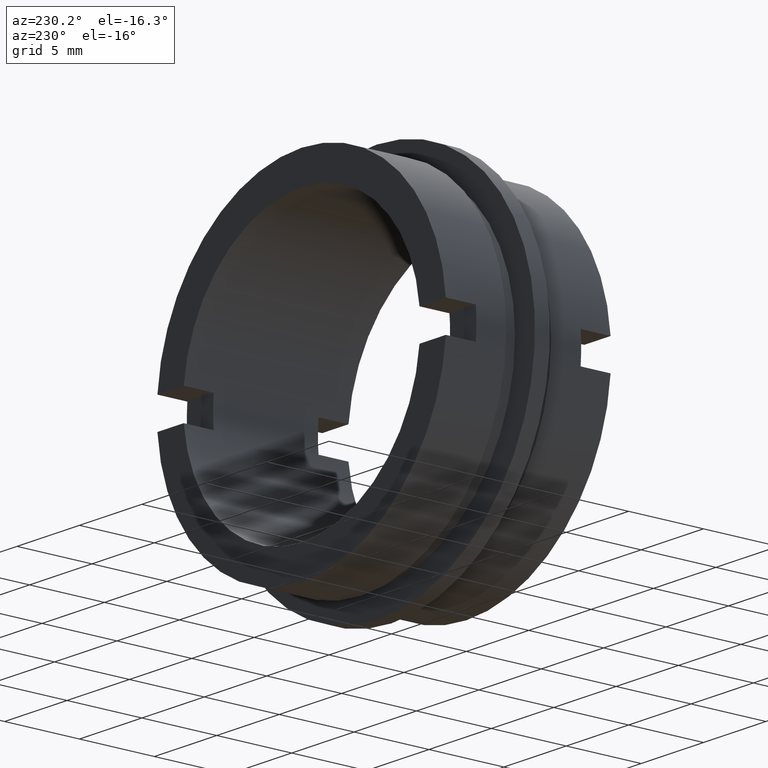
[diagram: clean part render]
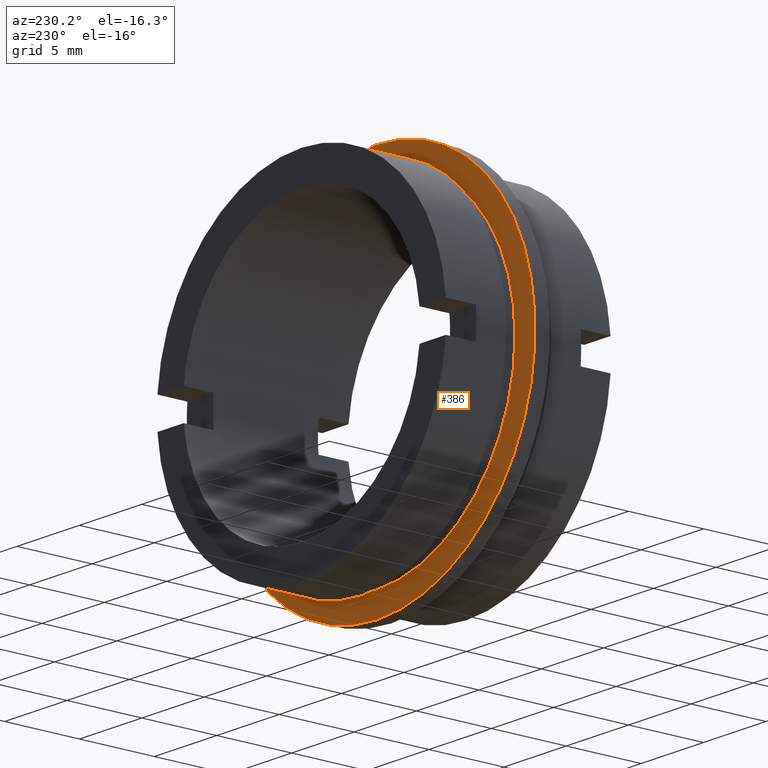
[diagram: same view with one face highlighted and labeled with its STEP entity id]
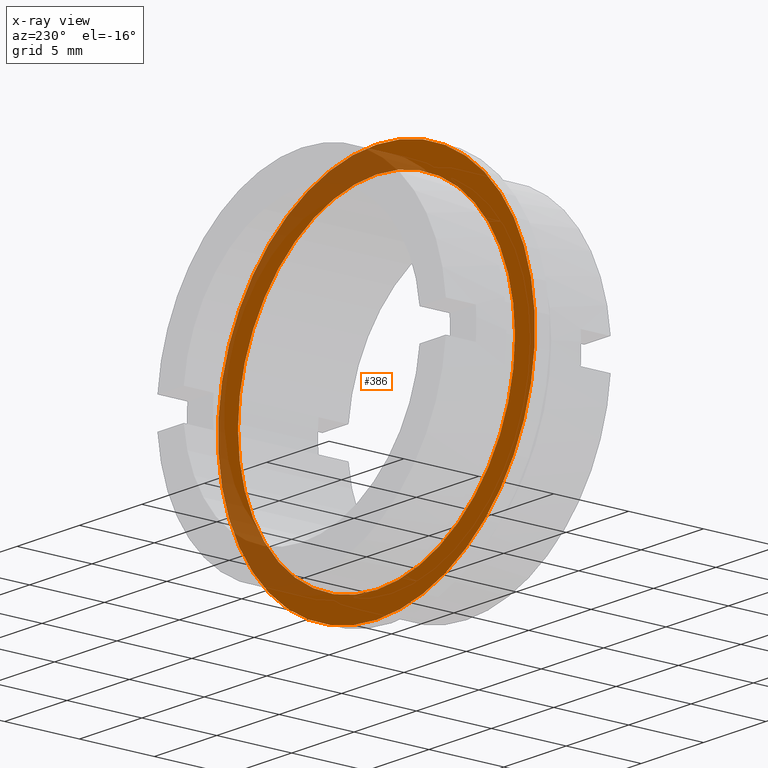
[diagram: x-ray of the same camera — body ghosted, the highlighted face saturated]
A machine part, auxiliary view. The second image highlights one B-rep face of the part: STEP entity #386.
The next image is the same camera in x-ray: the body ghosted, the highlighted face saturated — about 28% of this face is hidden behind the body in this view.
In plain terms, the highlighted planar face has unit normal (-0, 1, 0).
Its self-contained STEP definition (entity closure, byte-faithful):
#37 = CARTESIAN_POINT ( 'NONE',  ( 0.0000000000000000000, 5.999999999999998200, 0.0000000000000000000 ) ) ;
#52 = ORIENTED_EDGE ( 'NONE', *, *, #570, .T. ) ;
#87 = CARTESIAN_POINT ( 'NONE',  ( 0.0000000000000000000, 5.999999999999998200, 11.09999999999999800 ) ) ;
#94 = FACE_BOUND ( 'NONE', #129, .T. ) ;
#95 = VERTEX_POINT ( 'NONE', #87 ) ;
#106 = AXIS2_PLACEMENT_3D ( 'NONE', #212, #756, #124 ) ;
#120 = CARTESIAN_POINT ( 'NONE',  ( -11.09999999999999800, 5.999999999999999100, 0.0000000000000000000 ) ) ;
#124 = DIRECTION ( 'NONE',  ( 0.0000000000000000000, 0.0000000000000000000, 1.000000000000000000 ) ) ;
#129 = EDGE_LOOP ( 'NONE', ( #1022, #543 ) ) ;
#156 = CIRCLE ( 'NONE', #547, 12.69999999999999900 ) ;
#179 = DIRECTION ( 'NONE',  ( -0.0000000000000000000, 1.000000000000000000, -0.0000000000000000000 ) ) ;
#212 = CARTESIAN_POINT ( 'NONE',  ( 0.0000000000000000000, 5.999999999999998200, 0.0000000000000000000 ) ) ;
#226 = CIRCLE ( 'NONE', #106, 11.09999999999999800 ) ;
#237 = CARTESIAN_POINT ( 'NONE',  ( 1.359357947053562000E-015, 5.999999999999998200, -11.09999999999999800 ) ) ;
#325 = EDGE_CURVE ( 'NONE', #827, #95, #226, .T. ) ;
#327 = ORIENTED_EDGE ( 'NONE', *, *, #456, .T. ) ;
#386 = ADVANCED_FACE ( 'NONE', ( #783, #94 ), #568, .T. ) ;
#407 = CARTESIAN_POINT ( 'NONE',  ( 0.0000000000000000000, 5.999999999999998200, 12.69999999999999900 ) ) ;
#456 = EDGE_CURVE ( 'NONE', #1071, #580, #943, .T. ) ;
#466 = DIRECTION ( 'NONE',  ( 0.0000000000000000000, 0.0000000000000000000, 1.000000000000000000 ) ) ;
#470 = DIRECTION ( 'NONE',  ( -0.0000000000000000000, 1.000000000000000000, 0.0000000000000000000 ) ) ;
#530 = EDGE_LOOP ( 'NONE', ( #327, #52 ) ) ;
#543 = ORIENTED_EDGE ( 'NONE', *, *, #325, .F. ) ;
#547 = AXIS2_PLACEMENT_3D ( 'NONE', #813, #179, #720 ) ;
#562 = CARTESIAN_POINT ( 'NONE',  ( 0.0000000000000000000, 5.999999999999998200, 0.0000000000000000000 ) ) ;
#568 = PLANE ( 'NONE',  #642 ) ;
#570 = EDGE_CURVE ( 'NONE', #580, #1071, #156, .T. ) ;
#579 = DIRECTION ( 'NONE',  ( -0.0000000000000000000, 1.000000000000000000, -0.0000000000000000000 ) ) ;
#580 = VERTEX_POINT ( 'NONE', #971 ) ;
#642 = AXIS2_PLACEMENT_3D ( 'NONE', #120, #470, #1004 ) ;
#720 = DIRECTION ( 'NONE',  ( 0.0000000000000000000, 0.0000000000000000000, 1.000000000000000000 ) ) ;
#756 = DIRECTION ( 'NONE',  ( -0.0000000000000000000, 1.000000000000000000, -0.0000000000000000000 ) ) ;
#783 = FACE_OUTER_BOUND ( 'NONE', #530, .T. ) ;
#813 = CARTESIAN_POINT ( 'NONE',  ( 0.0000000000000000000, 5.999999999999998200, 0.0000000000000000000 ) ) ;
#820 = AXIS2_PLACEMENT_3D ( 'NONE', #562, #1075, #466 ) ;
#827 = VERTEX_POINT ( 'NONE', #237 ) ;
#943 = CIRCLE ( 'NONE', #820, 12.69999999999999900 ) ;
#971 = CARTESIAN_POINT ( 'NONE',  ( 1.555301434917138400E-015, 5.999999999999998200, -12.69999999999999900 ) ) ;
#1004 = DIRECTION ( 'NONE',  ( 0.0000000000000000000, 0.0000000000000000000, 1.000000000000000000 ) ) ;
#1022 = ORIENTED_EDGE ( 'NONE', *, *, #1114, .F. ) ;
#1041 = CIRCLE ( 'NONE', #1060, 11.09999999999999800 ) ;
#1060 = AXIS2_PLACEMENT_3D ( 'NONE', #37, #579, #1096 ) ;
#1071 = VERTEX_POINT ( 'NONE', #407 ) ;
#1075 = DIRECTION ( 'NONE',  ( -0.0000000000000000000, 1.000000000000000000, -0.0000000000000000000 ) ) ;
#1096 = DIRECTION ( 'NONE',  ( 0.0000000000000000000, 0.0000000000000000000, 1.000000000000000000 ) ) ;
#1114 = EDGE_CURVE ( 'NONE', #95, #827, #1041, .T. ) ;